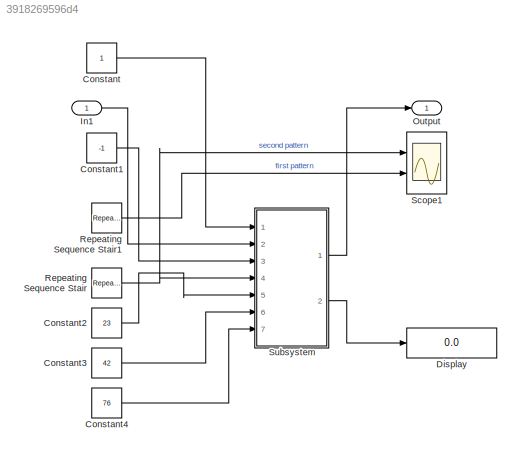
MODEL slx_3918269596d4
KIND model
CONFIG AbsTol = auto
CONFIG EnableMultiTasking = off
CONFIG FixedStep = 0.1
CONFIG MaxStep = 0.1
CONFIG MinStep = auto
CONFIG RelTol = 1e-3
CONFIG SampleTimeConstraint = Unconstrained
CONFIG Solver = FixedStepDiscrete
CONFIG SolverName = FixedStepDiscrete
CONFIG StartTime = 0.0
CONFIG StopTime = 1.0
BLOCK [Constant] Constant
BLOCK [Constant] Constant1
  Value = -1
BLOCK [Constant] Constant2
  Value = 23
BLOCK [Constant] Constant3
  Value = 42
BLOCK [Constant] Constant4
  Value = 76
BLOCK [Display] Display
  Decimation = 1
  Ports = [1]
BLOCK [Inport] In1
  IconDisplay = Port number
BLOCK [Outport] Output
  IconDisplay = Port number
BLOCK [Reference] Repeating Sequence Stair  REF=simulink/Sources/Repeating
Sequence
Stair
  Ports = [0, 1]
  SourceBlock = simulink/Sources/Repeating\nSequence\nStair
  SourceProductBaseCode = SL
  SourceProductName = Simulink
  SourceType = Repeating Sequence Stair
BLOCK [Reference] Repeating Sequence Stair1  REF=simulink/Sources/Repeating
Sequence
Stair
  Ports = [0, 1]
  SourceBlock = simulink/Sources/Repeating\nSequence\nStair
  SourceProductBaseCode = SL
  SourceProductName = Simulink
  SourceType = Repeating Sequence Stair
BLOCK [Scope] Scope1
  Floating = off
  NumInputPorts = 2
  Ports = [2]
  ScopeSpecificationString = Simulink.scopes.TimeScopeBlockCfg('CurrentConfiguration', extmgr.ConfigurationSet(extmgr.Configuration('Core','General UI',true),extmgr.Configuration('Core','Source UI',true),extmgr.Configuration('Sources','WiredSimulink',true,'DataLoggingVariableName','ScopeData1'),extmgr.Configuration('Visuals','Time Domain',true,'SerializedDisplays',{struct('MinYLimReal','0.75','MaxYLimReal','3.25','YLabelReal'...<+1953ch>
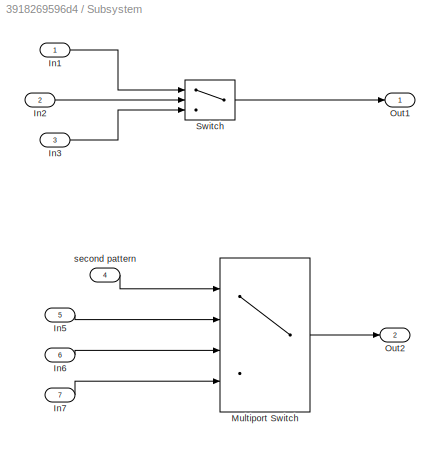
BLOCK [SubSystem] Subsystem
  Ports = [7, 2]
  RequestExecContextInheritance = off
  TreatAsAtomicUnit = on
BLOCK [Inport] Subsystem/In1
  IconDisplay = Port number
BLOCK [Inport] Subsystem/In2
  IconDisplay = Port number
  Port = 2
BLOCK [Inport] Subsystem/In3
  IconDisplay = Port number
  Port = 3
BLOCK [Inport] Subsystem/In5
  IconDisplay = Port number
  Port = 5
BLOCK [Inport] Subsystem/In6
  IconDisplay = Port number
  Port = 6
BLOCK [Inport] Subsystem/In7
  IconDisplay = Port number
  Port = 7
BLOCK [MultiPortSwitch] Subsystem/Multiport Switch
  InputSameDT = off
  Ports = [4, 1]
  SaturateOnIntegerOverflow = off
BLOCK [Outport] Subsystem/Out1
  IconDisplay = Port number
BLOCK [Outport] Subsystem/Out2
  IconDisplay = Port number
  Port = 2
BLOCK [Switch] Subsystem/Switch
  Criteria = u2 > Threshold
  InputSameDT = off
  SaturateOnIntegerOverflow = off
BLOCK [Inport] Subsystem/second pattern
  IconDisplay = Port number
  Port = 4
LINE Constant1:1 -> Subsystem:3
LINE Constant2:1 -> Subsystem:5
LINE Constant3:1 -> Subsystem:6
LINE Constant4:1 -> Subsystem:7
LINE Constant:1 -> Subsystem:1
LINE In1:1 -> Subsystem:2
LINE Repeating Sequence Stair1:1 -> Scope1:2
NET Repeating Sequence Stair:1 -> Scope1:1, Subsystem:4
LINE Subsystem/In1:1 -> Subsystem/Switch:1
LINE Subsystem/In2:1 -> Subsystem/Switch:2
LINE Subsystem/In3:1 -> Subsystem/Switch:3
LINE Subsystem/In5:1 -> Subsystem/Multiport Switch:2
LINE Subsystem/In6:1 -> Subsystem/Multiport Switch:3
LINE Subsystem/In7:1 -> Subsystem/Multiport Switch:4
LINE Subsystem/Multiport Switch:1 -> Subsystem/Out2:1
LINE Subsystem/Switch:1 -> Subsystem/Out1:1
LINE Subsystem/second pattern:1 -> Subsystem/Multiport Switch:1
LINE Subsystem:1 -> Output:1
LINE Subsystem:2 -> Display:1
note: NET lines group one-source signal fan-out (src -> all destinations, sorted); 1:1 wires keep LINE
